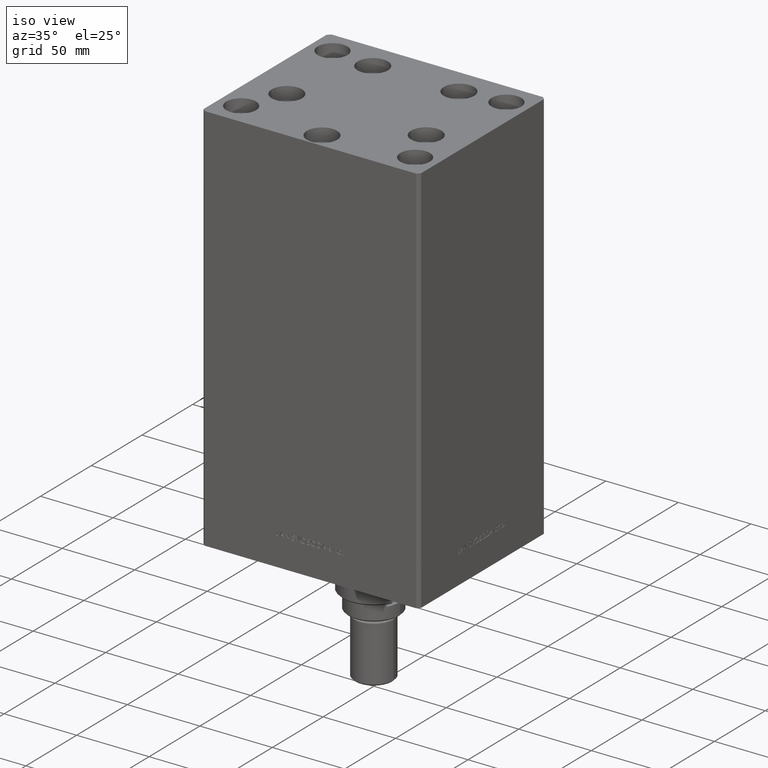
[diagram: clean part render]
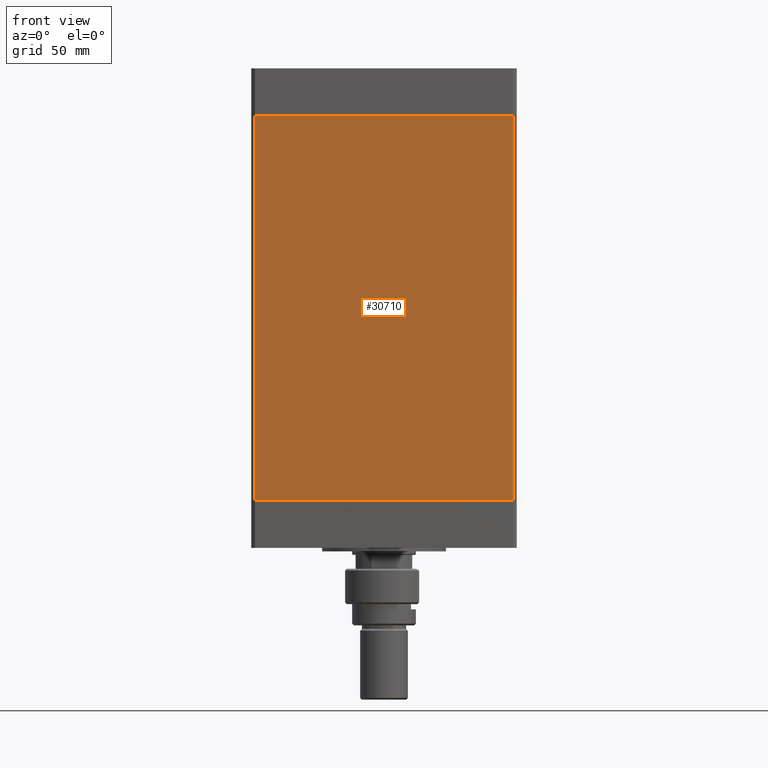
[diagram: tour spotlight — one face highlighted and labeled with its STEP entity id]
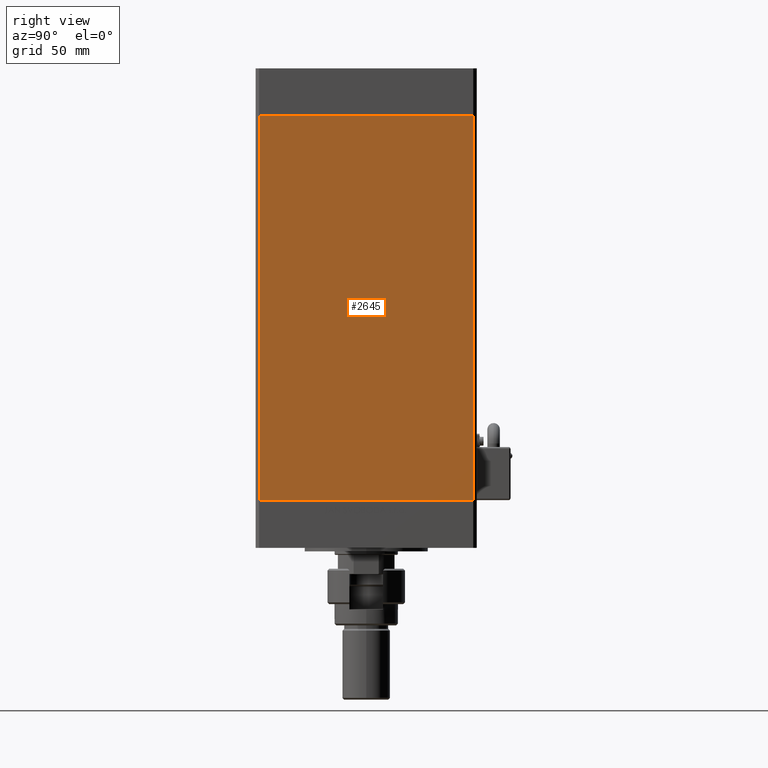
[diagram: tour spotlight — one face highlighted and labeled with its STEP entity id]
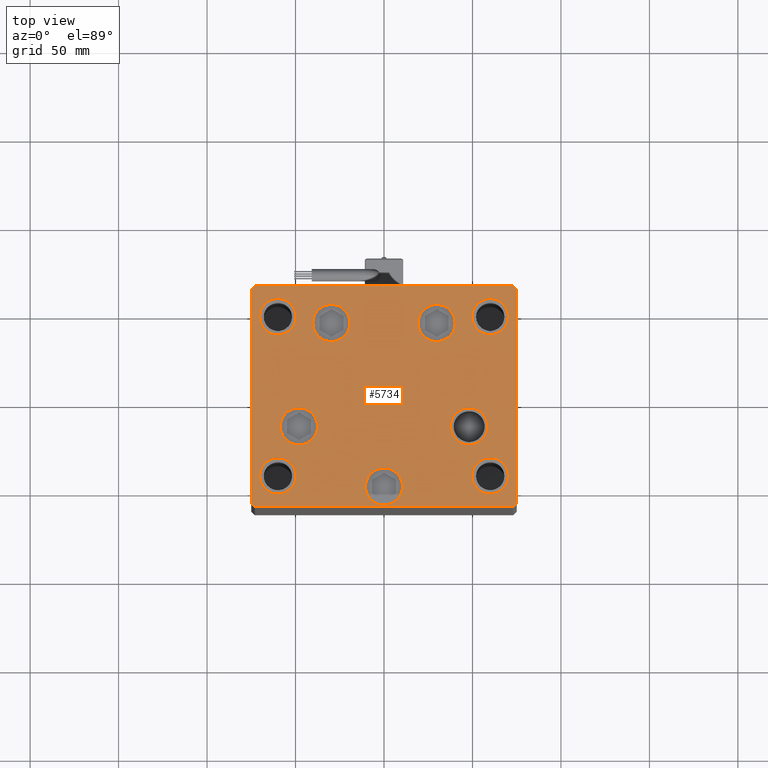
[diagram: tour spotlight — one face highlighted and labeled with its STEP entity id]
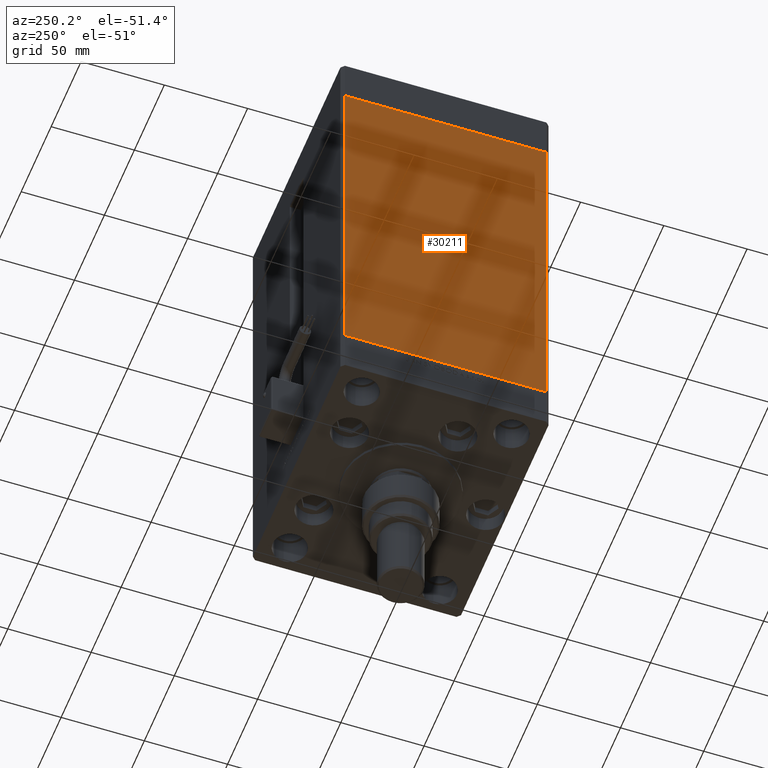
[diagram: tour spotlight — one face highlighted and labeled with its STEP entity id]
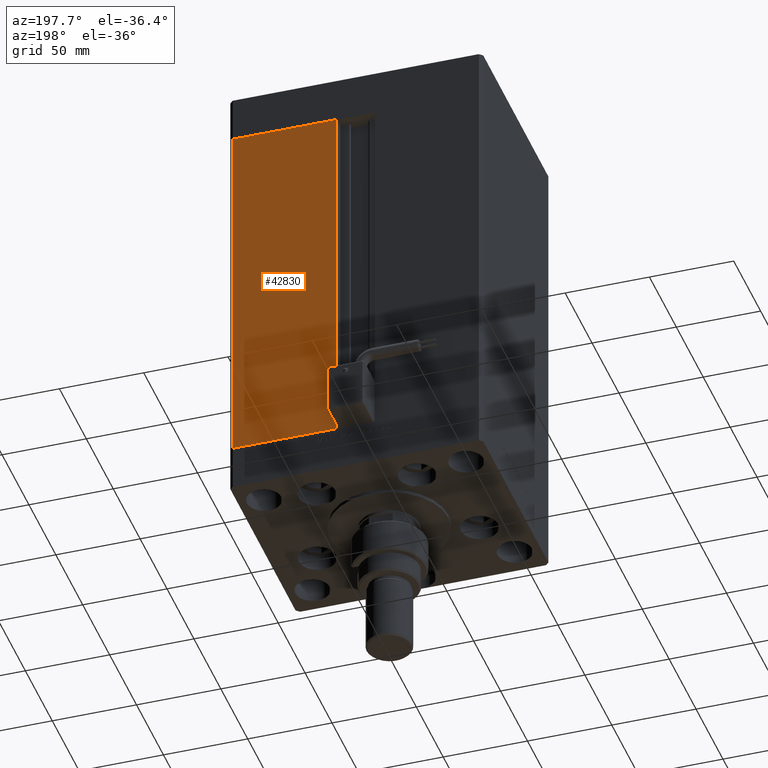
[diagram: tour spotlight — one face highlighted and labeled with its STEP entity id]
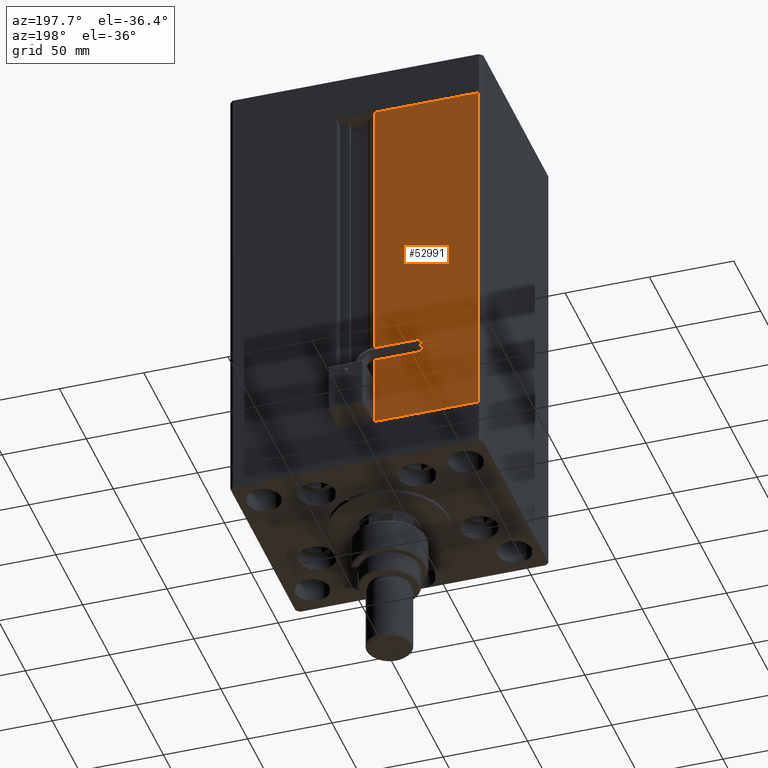
[diagram: tour spotlight — one face highlighted and labeled with its STEP entity id]
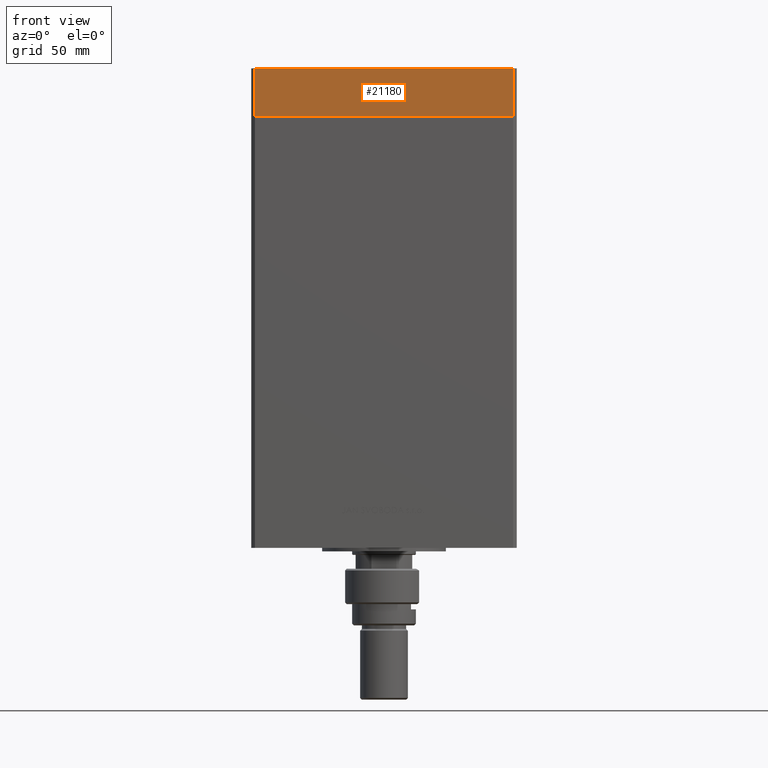
[diagram: tour spotlight — one face highlighted and labeled with its STEP entity id]
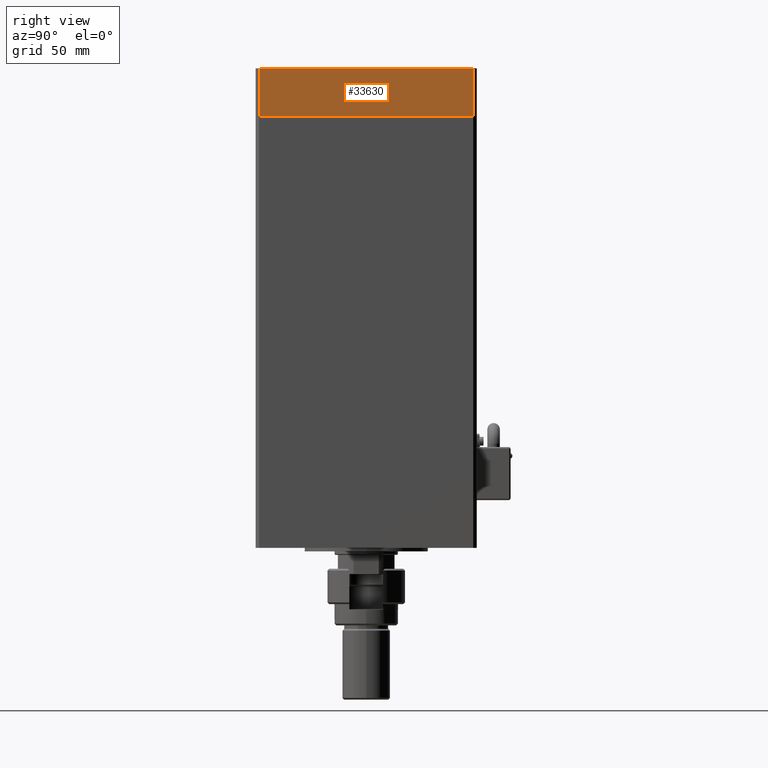
[diagram: tour spotlight — one face highlighted and labeled with its STEP entity id]
A machine part: a face-by-face anatomy tour. The part has 1298 B-rep faces; the first image is the clean iso view, then the 8 largest visible faces are spotlighted one at a time (largest first), each with its STEP entity span.

Face 1 — front view, entity #30710. In plain terms, the highlighted planar face has unit normal (0, 1, 0).
Definition (entity closure, byte-faithful):
#538 = FACE_OUTER_BOUND ( 'NONE', #22417, .T. ) ;
#3963 = DIRECTION ( 'NONE',  ( 1.000000000000000000, 0.000000000000000000, 0.000000000000000000 ) ) ;
#4226 = LINE ( 'NONE', #32407, #48001 ) ;
#4342 = ORIENTED_EDGE ( 'NONE', *, *, #48317, .F. ) ;
#4575 = DIRECTION ( 'NONE',  ( 0.000000000000000000, 1.000000000000000000, 0.000000000000000000 ) ) ;
#6236 = VECTOR ( 'NONE', #17339, 1000.000000000000000 ) ;
#6413 = CARTESIAN_POINT ( 'NONE',  ( 72.99999999999998579, -62.50000000000000000, 0.000000000000000000 ) ) ;
#7759 = VERTEX_POINT ( 'NONE', #13630 ) ;
#8612 = PLANE ( 'NONE',  #10182 ) ;
#10182 = AXIS2_PLACEMENT_3D ( 'NONE', #37846, #4575, #49670 ) ;
#12779 = EDGE_CURVE ( 'NONE', #12983, #48194, #31144, .T. ) ;
#12983 = VERTEX_POINT ( 'NONE', #25941 ) ;
#13586 = VECTOR ( 'NONE', #25164, 1000.000000000000000 ) ;
#13594 = CARTESIAN_POINT ( 'NONE',  ( -72.99999999999998579, -62.50000000000000000, 0.000000000000000000 ) ) ;
#13630 = CARTESIAN_POINT ( 'NONE',  ( -72.99999999999998579, -62.50000000000000000, 0.000000000000000000 ) ) ;
#15076 = VERTEX_POINT ( 'NONE', #47514 ) ;
#17339 = DIRECTION ( 'NONE',  ( -0.000000000000000000, -0.000000000000000000, -1.000000000000000000 ) ) ;
#22417 = EDGE_LOOP ( 'NONE', ( #25293, #48483, #4342, #51362 ) ) ;
#25129 = CARTESIAN_POINT ( 'NONE',  ( -72.99999999999998579, -62.50000000000000000, 217.0000000000000000 ) ) ;
#25164 = DIRECTION ( 'NONE',  ( 1.000000000000000000, 0.000000000000000000, 0.000000000000000000 ) ) ;
#25293 = ORIENTED_EDGE ( 'NONE', *, *, #49417, .T. ) ;
#25941 = CARTESIAN_POINT ( 'NONE',  ( 72.99999999999998579, -62.50000000000000000, 217.0000000000000000 ) ) ;
#28379 = DIRECTION ( 'NONE',  ( -0.000000000000000000, -0.000000000000000000, -1.000000000000000000 ) ) ;
#30235 = LINE ( 'NONE', #13594, #13586 ) ;
#30710 = ADVANCED_FACE ( 'NONE', ( #538 ), #8612, .F. ) ;
#31144 = LINE ( 'NONE', #36433, #43653 ) ;
#32407 = CARTESIAN_POINT ( 'NONE',  ( -72.99999999999998579, -62.50000000000000000, 217.0000000000000000 ) ) ;
#36433 = CARTESIAN_POINT ( 'NONE',  ( 72.99999999999998579, -62.50000000000000000, 217.0000000000000000 ) ) ;
#37846 = CARTESIAN_POINT ( 'NONE',  ( -72.99999999999998579, -62.50000000000000000, 217.0000000000000000 ) ) ;
#41496 = LINE ( 'NONE', #25129, #6236 ) ;
#41993 = EDGE_CURVE ( 'NONE', #15076, #7759, #41496, .T. ) ;
#43653 = VECTOR ( 'NONE', #28379, 1000.000000000000000 ) ;
#47514 = CARTESIAN_POINT ( 'NONE',  ( -72.99999999999998579, -62.50000000000000000, 217.0000000000000000 ) ) ;
#48001 = VECTOR ( 'NONE', #3963, 1000.000000000000000 ) ;
#48194 = VERTEX_POINT ( 'NONE', #6413 ) ;
#48317 = EDGE_CURVE ( 'NONE', #15076, #12983, #4226, .T. ) ;
#48483 = ORIENTED_EDGE ( 'NONE', *, *, #12779, .F. ) ;
#49417 = EDGE_CURVE ( 'NONE', #7759, #48194, #30235, .T. ) ;
#49670 = DIRECTION ( 'NONE',  ( 0.000000000000000000, -0.000000000000000000, 1.000000000000000000 ) ) ;
#51362 = ORIENTED_EDGE ( 'NONE', *, *, #41993, .T. ) ;

Face 2 — right view, entity #2645. In plain terms, the highlighted planar face has unit normal (1, -0, 0).
Definition (entity closure, byte-faithful):
#2096 = ORIENTED_EDGE ( 'NONE', *, *, #51763, .F. ) ;
#2132 = LINE ( 'NONE', #34895, #17701 ) ;
#2295 = DIRECTION ( 'NONE',  ( 1.000000000000000000, -2.293849224432142354E-16, 0.000000000000000000 ) ) ;
#2645 = ADVANCED_FACE ( 'NONE', ( #27272 ), #23245, .T. ) ;
#3436 = ORIENTED_EDGE ( 'NONE', *, *, #44601, .T. ) ;
#7393 = EDGE_CURVE ( 'NONE', #53089, #17066, #2132, .T. ) ;
#11987 = DIRECTION ( 'NONE',  ( -2.293849224432141861E-16, -1.000000000000000000, 0.000000000000000000 ) ) ;
#12311 = DIRECTION ( 'NONE',  ( -0.000000000000000000, -0.000000000000000000, -1.000000000000000000 ) ) ;
#12381 = AXIS2_PLACEMENT_3D ( 'NONE', #18949, #2295, #30747 ) ;
#13097 = CARTESIAN_POINT ( 'NONE',  ( 74.99999999999998579, -60.50000000000000000, 0.000000000000000000 ) ) ;
#15732 = CARTESIAN_POINT ( 'NONE',  ( 74.99999999999998579, -60.50000000000000000, 217.0000000000000000 ) ) ;
#15947 = VECTOR ( 'NONE', #51705, 1000.000000000000000 ) ;
#16011 = LINE ( 'NONE', #43953, #47508 ) ;
#17066 = VERTEX_POINT ( 'NONE', #13097 ) ;
#17701 = VECTOR ( 'NONE', #46974, 1000.000000000000000 ) ;
#17790 = EDGE_LOOP ( 'NONE', ( #35451, #2096, #3436, #28732 ) ) ;
#18949 = CARTESIAN_POINT ( 'NONE',  ( 75.00000000000001421, 60.50000000000000000, 217.0000000000000000 ) ) ;
#21048 = EDGE_CURVE ( 'NONE', #22038, #17066, #51968, .T. ) ;
#22038 = VERTEX_POINT ( 'NONE', #15732 ) ;
#23245 = PLANE ( 'NONE',  #12381 ) ;
#24931 = CARTESIAN_POINT ( 'NONE',  ( 75.00000000000001421, 60.50000000000000000, 217.0000000000000000 ) ) ;
#27272 = FACE_OUTER_BOUND ( 'NONE', #17790, .T. ) ;
#27553 = CARTESIAN_POINT ( 'NONE',  ( 74.99999999999998579, -60.50000000000000000, 217.0000000000000000 ) ) ;
#28732 = ORIENTED_EDGE ( 'NONE', *, *, #21048, .T. ) ;
#30747 = DIRECTION ( 'NONE',  ( 2.293849224432142354E-16, 1.000000000000000000, 0.000000000000000000 ) ) ;
#34895 = CARTESIAN_POINT ( 'NONE',  ( 75.00000000000001421, 60.50000000000000000, 0.000000000000000000 ) ) ;
#35451 = ORIENTED_EDGE ( 'NONE', *, *, #7393, .F. ) ;
#37494 = VERTEX_POINT ( 'NONE', #50181 ) ;
#39055 = CARTESIAN_POINT ( 'NONE',  ( 75.00000000000001421, 60.50000000000000000, 0.000000000000000000 ) ) ;
#43953 = CARTESIAN_POINT ( 'NONE',  ( 75.00000000000001421, 60.50000000000000000, 217.0000000000000000 ) ) ;
#44601 = EDGE_CURVE ( 'NONE', #37494, #22038, #16011, .T. ) ;
#46974 = DIRECTION ( 'NONE',  ( -2.293849224432141861E-16, -1.000000000000000000, 0.000000000000000000 ) ) ;
#47508 = VECTOR ( 'NONE', #11987, 1000.000000000000000 ) ;
#49093 = LINE ( 'NONE', #24931, #50586 ) ;
#50181 = CARTESIAN_POINT ( 'NONE',  ( 75.00000000000001421, 60.50000000000000000, 217.0000000000000000 ) ) ;
#50586 = VECTOR ( 'NONE', #12311, 1000.000000000000000 ) ;
#51705 = DIRECTION ( 'NONE',  ( -0.000000000000000000, -0.000000000000000000, -1.000000000000000000 ) ) ;
#51763 = EDGE_CURVE ( 'NONE', #37494, #53089, #49093, .T. ) ;
#51968 = LINE ( 'NONE', #27553, #15947 ) ;
#53089 = VERTEX_POINT ( 'NONE', #39055 ) ;

Face 3 — top view, entity #5734. In plain terms, the highlighted planar face has unit normal (0, 0, 1).
Definition (entity closure, byte-faithful):
#229 = CARTESIAN_POINT ( 'NONE',  ( -73.00000000000001421, -62.50000000000002842, 0.000000000000000000 ) ) ;
#512 = CARTESIAN_POINT ( 'NONE',  ( 74.99999999999992895, 60.50000000000002842, 0.000000000000000000 ) ) ;
#771 = VECTOR ( 'NONE', #34667, 1000.000000000000114 ) ;
#804 = AXIS2_PLACEMENT_3D ( 'NONE', #19203, #32332, #47933 ) ;
#1024 = EDGE_CURVE ( 'NONE', #14037, #44026, #23633, .T. ) ;
#1049 = CARTESIAN_POINT ( 'NONE',  ( 6.245698675651500444E-15, -51.00000000000000000, 0.000000000000000000 ) ) ;
#1370 = ORIENTED_EDGE ( 'NONE', *, *, #1024, .T. ) ;
#2212 = ORIENTED_EDGE ( 'NONE', *, *, #9782, .T. ) ;
#2240 = CIRCLE ( 'NONE', #38226, 10.50000000000000178 ) ;
#2516 = EDGE_CURVE ( 'NONE', #9075, #13127, #11559, .T. ) ;
#2635 = VECTOR ( 'NONE', #14340, 1000.000000000000000 ) ;
#2707 = DIRECTION ( 'NONE',  ( 0.000000000000000000, -0.000000000000000000, -1.000000000000000000 ) ) ;
#3565 = EDGE_CURVE ( 'NONE', #13127, #9075, #32997, .T. ) ;
#3778 = AXIS2_PLACEMENT_3D ( 'NONE', #35828, #28559, #11138 ) ;
#3829 = CARTESIAN_POINT ( 'NONE',  ( 37.58326112068522207, -16.99999999999999645, 0.000000000000000000 ) ) ;
#3972 = DIRECTION ( 'NONE',  ( 1.000000000000000000, 0.000000000000000000, 0.000000000000000000 ) ) ;
#3984 = CIRCLE ( 'NONE', #30556, 10.25000000000000178 ) ;
#4140 = AXIS2_PLACEMENT_3D ( 'NONE', #15055, #2707, #34923 ) ;
#4757 = ORIENTED_EDGE ( 'NONE', *, *, #44839, .F. ) ;
#5448 = ORIENTED_EDGE ( 'NONE', *, *, #3565, .T. ) ;
#5678 = AXIS2_PLACEMENT_3D ( 'NONE', #38931, #51553, #38672 ) ;
#5734 = ADVANCED_FACE ( 'NONE', ( #42967, #34380, #23095, #34909, #47528, #18793, #18270, #14500, #10747, #51279 ), #30599, .T. ) ;
#5741 = CARTESIAN_POINT ( 'NONE',  ( 49.75000000000000000, 44.99999999999999289, 0.000000000000000000 ) ) ;
#5765 = DIRECTION ( 'NONE',  ( 1.000000000000000000, 0.000000000000000000, 0.000000000000000000 ) ) ;
#6004 = CIRCLE ( 'NONE', #24863, 10.50000000000000000 ) ;
#6522 = CARTESIAN_POINT ( 'NONE',  ( -49.74999999999999289, 45.00000000000000000, 0.000000000000000000 ) ) ;
#6539 = CARTESIAN_POINT ( 'NONE',  ( 10.50000000000000711, -51.00000000000000000, 0.000000000000000000 ) ) ;
#6599 = VERTEX_POINT ( 'NONE', #35696 ) ;
#6896 = DIRECTION ( 'NONE',  ( 1.000000000000000000, 0.000000000000000000, 0.000000000000000000 ) ) ;
#7018 = CARTESIAN_POINT ( 'NONE',  ( 60.00000000000000000, 44.99999999999999289, 0.000000000000000000 ) ) ;
#7161 = DIRECTION ( 'NONE',  ( 0.000000000000000000, -0.000000000000000000, -1.000000000000000000 ) ) ;
#7405 = CARTESIAN_POINT ( 'NONE',  ( 40.23102073172059789, 41.43749999999999289, 0.000000000000000000 ) ) ;
#7495 = CARTESIAN_POINT ( 'NONE',  ( -29.73102073172060500, 41.43749999999998579, 0.000000000000000000 ) ) ;
#7636 = EDGE_CURVE ( 'NONE', #19935, #23539, #12572, .T. ) ;
#8185 = VECTOR ( 'NONE', #37026, 1000.000000000000000 ) ;
#8487 = DIRECTION ( 'NONE',  ( 0.000000000000000000, 0.000000000000000000, 1.000000000000000000 ) ) ;
#8745 = VERTEX_POINT ( 'NONE', #32793 ) ;
#8834 = VERTEX_POINT ( 'NONE', #37872 ) ;
#9075 = VERTEX_POINT ( 'NONE', #12414 ) ;
#9174 = CARTESIAN_POINT ( 'NONE',  ( 70.25000000000000000, -44.99999999999999289, 0.000000000000000000 ) ) ;
#9721 = EDGE_CURVE ( 'NONE', #22619, #45405, #26962, .T. ) ;
#9746 = VERTEX_POINT ( 'NONE', #35288 ) ;
#9765 = DIRECTION ( 'NONE',  ( 0.000000000000000000, 0.000000000000000000, 1.000000000000000000 ) ) ;
#9782 = EDGE_CURVE ( 'NONE', #8745, #40727, #26403, .T. ) ;
#9852 = AXIS2_PLACEMENT_3D ( 'NONE', #42805, #22124, #5765 ) ;
#9908 = CARTESIAN_POINT ( 'NONE',  ( 70.25000000000000000, 44.99999999999999289, 0.000000000000000000 ) ) ;
#10747 = FACE_BOUND ( 'NONE', #13977, .T. ) ;
#11138 = DIRECTION ( 'NONE',  ( 1.000000000000000000, 0.000000000000000000, 0.000000000000000000 ) ) ;
#11559 = CIRCLE ( 'NONE', #46676, 10.50000000000000178 ) ;
#11698 = ORIENTED_EDGE ( 'NONE', *, *, #7636, .T. ) ;
#12414 = CARTESIAN_POINT ( 'NONE',  ( 19.23102073172059434, 41.43749999999999289, 0.000000000000000000 ) ) ;
#12502 = CARTESIAN_POINT ( 'NONE',  ( -60.00000000000000000, 45.00000000000000000, 0.000000000000000000 ) ) ;
#12572 = LINE ( 'NONE', #16355, #40028 ) ;
#12591 = CIRCLE ( 'NONE', #32329, 10.24999999999999467 ) ;
#13101 = DIRECTION ( 'NONE',  ( 1.000000000000000000, 9.505334114941407284E-17, 0.000000000000000000 ) ) ;
#13127 = VERTEX_POINT ( 'NONE', #7405 ) ;
#13129 = EDGE_CURVE ( 'NONE', #30240, #25346, #43704, .T. ) ;
#13397 = VERTEX_POINT ( 'NONE', #6539 ) ;
#13644 = DIRECTION ( 'NONE',  ( 1.000000000000000000, 0.000000000000000000, 0.000000000000000000 ) ) ;
#13774 = DIRECTION ( 'NONE',  ( 0.000000000000000000, 0.000000000000000000, 1.000000000000000000 ) ) ;
#13977 = EDGE_LOOP ( 'NONE', ( #47127, #38216 ) ) ;
#14037 = VERTEX_POINT ( 'NONE', #48014 ) ;
#14245 = VERTEX_POINT ( 'NONE', #5741 ) ;
#14333 = CARTESIAN_POINT ( 'NONE',  ( 73.00000000000001421, -62.50000000000001421, 0.000000000000000000 ) ) ;
#14340 = DIRECTION ( 'NONE',  ( -1.000000000000000000, -1.901066822988282689E-16, 0.000000000000000000 ) ) ;
#14434 = VERTEX_POINT ( 'NONE', #3829 ) ;
#14500 = FACE_BOUND ( 'NONE', #33259, .T. ) ;
#14870 = VERTEX_POINT ( 'NONE', #32509 ) ;
#15055 = CARTESIAN_POINT ( 'NONE',  ( 48.08326112068522207, -16.99999999999999645, 0.000000000000000000 ) ) ;
#15169 = EDGE_LOOP ( 'NONE', ( #47038, #22359 ) ) ;
#15777 = CIRCLE ( 'NONE', #3778, 10.25000000000000178 ) ;
#16014 = ORIENTED_EDGE ( 'NONE', *, *, #21688, .T. ) ;
#16280 = CIRCLE ( 'NONE', #29977, 10.50000000000000178 ) ;
#16355 = CARTESIAN_POINT ( 'NONE',  ( -73.00000000000001421, -62.50000000000002842, 0.000000000000000000 ) ) ;
#16498 = VERTEX_POINT ( 'NONE', #39876 ) ;
#16636 = EDGE_CURVE ( 'NONE', #14245, #49177, #48826, .T. ) ;
#17226 = DIRECTION ( 'NONE',  ( 0.7071067811865451302, -0.7071067811865500152, 0.000000000000000000 ) ) ;
#17416 = DIRECTION ( 'NONE',  ( 0.000000000000000000, -0.000000000000000000, -1.000000000000000000 ) ) ;
#17818 = CARTESIAN_POINT ( 'NONE',  ( -60.00000000000000000, 45.00000000000000000, 0.000000000000000000 ) ) ;
#17922 = VECTOR ( 'NONE', #17226, 1000.000000000000114 ) ;
#18095 = VERTEX_POINT ( 'NONE', #6522 ) ;
#18270 = FACE_BOUND ( 'NONE', #36513, .T. ) ;
#18291 = LINE ( 'NONE', #22579, #771 ) ;
#18793 = FACE_BOUND ( 'NONE', #15169, .T. ) ;
#18969 = CARTESIAN_POINT ( 'NONE',  ( 60.00000000000000000, -44.99999999999999289, 0.000000000000000000 ) ) ;
#19203 = CARTESIAN_POINT ( 'NONE',  ( 60.00000000000000000, -44.99999999999999289, 0.000000000000000000 ) ) ;
#19657 = AXIS2_PLACEMENT_3D ( 'NONE', #7018, #13774, #23635 ) ;
#19688 = AXIS2_PLACEMENT_3D ( 'NONE', #17818, #9765, #39012 ) ;
#19843 = VECTOR ( 'NONE', #43067, 1000.000000000000000 ) ;
#19935 = VERTEX_POINT ( 'NONE', #229 ) ;
#20330 = AXIS2_PLACEMENT_3D ( 'NONE', #48138, #40338, #47854 ) ;
#20386 = ORIENTED_EDGE ( 'NONE', *, *, #21066, .T. ) ;
#20497 = AXIS2_PLACEMENT_3D ( 'NONE', #18969, #27823, #23795 ) ;
#20905 = CARTESIAN_POINT ( 'NONE',  ( -75.00000000000001421, 60.49999999999997158, 0.000000000000000000 ) ) ;
#21066 = EDGE_CURVE ( 'NONE', #9746, #14434, #24491, .T. ) ;
#21240 = ORIENTED_EDGE ( 'NONE', *, *, #39060, .T. ) ;
#21541 = CARTESIAN_POINT ( 'NONE',  ( 73.00000000000001421, -62.50000000000001421, 0.000000000000000000 ) ) ;
#21688 = EDGE_CURVE ( 'NONE', #48535, #16498, #2240, .T. ) ;
#21774 = CARTESIAN_POINT ( 'NONE',  ( -75.00000000000001421, -60.50000000000001421, 0.000000000000000000 ) ) ;
#22124 = DIRECTION ( 'NONE',  ( 0.000000000000000000, -0.000000000000000000, -1.000000000000000000 ) ) ;
#22153 = VERTEX_POINT ( 'NONE', #32884 ) ;
#22359 = ORIENTED_EDGE ( 'NONE', *, *, #13129, .F. ) ;
#22458 = DIRECTION ( 'NONE',  ( 0.000000000000000000, 0.000000000000000000, 1.000000000000000000 ) ) ;
#22579 = CARTESIAN_POINT ( 'NONE',  ( 74.99999999999992895, 60.50000000000002842, 0.000000000000000000 ) ) ;
#22619 = VERTEX_POINT ( 'NONE', #22856 ) ;
#22655 = DIRECTION ( 'NONE',  ( 1.000000000000000000, 0.000000000000000000, 0.000000000000000000 ) ) ;
#22856 = CARTESIAN_POINT ( 'NONE',  ( 75.00000000000001421, -60.50000000000000711, 0.000000000000000000 ) ) ;
#22990 = VECTOR ( 'NONE', #35547, 1000.000000000000000 ) ;
#23095 = FACE_BOUND ( 'NONE', #49738, .T. ) ;
#23167 = EDGE_LOOP ( 'NONE', ( #26609, #11698, #21240, #27722, #48392, #47480, #51447, #1370 ) ) ;
#23202 = CARTESIAN_POINT ( 'NONE',  ( -48.08326112068522207, -17.00000000000000711, 0.000000000000000000 ) ) ;
#23539 = VERTEX_POINT ( 'NONE', #21541 ) ;
#23633 = LINE ( 'NONE', #20905, #8185 ) ;
#23635 = DIRECTION ( 'NONE',  ( 1.000000000000000000, 0.000000000000000000, 0.000000000000000000 ) ) ;
#23707 = EDGE_LOOP ( 'NONE', ( #27995, #16014 ) ) ;
#23795 = DIRECTION ( 'NONE',  ( 1.000000000000000000, 0.000000000000000000, 0.000000000000000000 ) ) ;
#24491 = CIRCLE ( 'NONE', #45933, 10.50000000000000178 ) ;
#24863 = AXIS2_PLACEMENT_3D ( 'NONE', #1049, #17416, #13644 ) ;
#24869 = DIRECTION ( 'NONE',  ( 1.000000000000000000, 0.000000000000000000, 0.000000000000000000 ) ) ;
#25290 = DIRECTION ( 'NONE',  ( 1.000000000000000000, 0.000000000000000000, 0.000000000000000000 ) ) ;
#25326 = EDGE_LOOP ( 'NONE', ( #46986, #5448 ) ) ;
#25346 = VERTEX_POINT ( 'NONE', #9174 ) ;
#25375 = CARTESIAN_POINT ( 'NONE',  ( 72.99999999999992895, 62.50000000000001421, 0.000000000000000000 ) ) ;
#25513 = CIRCLE ( 'NONE', #20330, 10.50000000000000178 ) ;
#25579 = EDGE_CURVE ( 'NONE', #22153, #18095, #3984, .T. ) ;
#25691 = DIRECTION ( 'NONE',  ( -0.7071067811865451302, -0.7071067811865500152, 0.000000000000000000 ) ) ;
#26212 = EDGE_CURVE ( 'NONE', #49177, #14245, #12591, .T. ) ;
#26403 = CIRCLE ( 'NONE', #42691, 10.50000000000000178 ) ;
#26549 = ORIENTED_EDGE ( 'NONE', *, *, #25579, .F. ) ;
#26609 = ORIENTED_EDGE ( 'NONE', *, *, #31312, .T. ) ;
#26962 = LINE ( 'NONE', #30971, #22990 ) ;
#27083 = EDGE_CURVE ( 'NONE', #16498, #48535, #25513, .T. ) ;
#27421 = CIRCLE ( 'NONE', #4140, 10.50000000000000178 ) ;
#27722 = ORIENTED_EDGE ( 'NONE', *, *, #9721, .T. ) ;
#27823 = DIRECTION ( 'NONE',  ( 0.000000000000000000, 0.000000000000000000, 1.000000000000000000 ) ) ;
#27830 = EDGE_LOOP ( 'NONE', ( #52846, #36124 ) ) ;
#27995 = ORIENTED_EDGE ( 'NONE', *, *, #27083, .T. ) ;
#28559 = DIRECTION ( 'NONE',  ( 0.000000000000000000, 0.000000000000000000, 1.000000000000000000 ) ) ;
#29026 = AXIS2_PLACEMENT_3D ( 'NONE', #46620, #22458, #38835 ) ;
#29977 = AXIS2_PLACEMENT_3D ( 'NONE', #45419, #32279, #25290 ) ;
#30240 = VERTEX_POINT ( 'NONE', #34275 ) ;
#30278 = EDGE_CURVE ( 'NONE', #8834, #34543, #47039, .T. ) ;
#30301 = CARTESIAN_POINT ( 'NONE',  ( 6.245698675651500444E-15, -51.00000000000000000, 0.000000000000000000 ) ) ;
#30442 = LINE ( 'NONE', #51658, #2635 ) ;
#30536 = DIRECTION ( 'NONE',  ( 1.000000000000000000, 0.000000000000000000, 0.000000000000000000 ) ) ;
#30556 = AXIS2_PLACEMENT_3D ( 'NONE', #12502, #8487, #24869 ) ;
#30599 = PLANE ( 'NONE',  #5678 ) ;
#30971 = CARTESIAN_POINT ( 'NONE',  ( 75.00000000000001421, -60.50000000000000711, 0.000000000000000000 ) ) ;
#31250 = ORIENTED_EDGE ( 'NONE', *, *, #47805, .T. ) ;
#31312 = EDGE_CURVE ( 'NONE', #44026, #19935, #50240, .T. ) ;
#31373 = DIRECTION ( 'NONE',  ( 1.000000000000000000, 0.000000000000000000, 0.000000000000000000 ) ) ;
#31507 = DIRECTION ( 'NONE',  ( 0.000000000000000000, -0.000000000000000000, -1.000000000000000000 ) ) ;
#31891 = EDGE_CURVE ( 'NONE', #18095, #22153, #39430, .T. ) ;
#32060 = EDGE_CURVE ( 'NONE', #40727, #8745, #16280, .T. ) ;
#32279 = DIRECTION ( 'NONE',  ( 0.000000000000000000, -0.000000000000000000, -1.000000000000000000 ) ) ;
#32302 = CARTESIAN_POINT ( 'NONE',  ( -75.00000000000001421, -60.50000000000001421, 0.000000000000000000 ) ) ;
#32329 = AXIS2_PLACEMENT_3D ( 'NONE', #43427, #43701, #30536 ) ;
#32332 = DIRECTION ( 'NONE',  ( 0.000000000000000000, 0.000000000000000000, 1.000000000000000000 ) ) ;
#32509 = CARTESIAN_POINT ( 'NONE',  ( -73.00000000000001421, 62.49999999999998579, 0.000000000000000000 ) ) ;
#32793 = CARTESIAN_POINT ( 'NONE',  ( -58.58326112068522207, -17.00000000000000711, 0.000000000000000000 ) ) ;
#32884 = CARTESIAN_POINT ( 'NONE',  ( -70.25000000000000000, 45.00000000000000000, 0.000000000000000000 ) ) ;
#32997 = CIRCLE ( 'NONE', #9852, 10.50000000000000178 ) ;
#33259 = EDGE_LOOP ( 'NONE', ( #44062, #26549 ) ) ;
#33457 = CARTESIAN_POINT ( 'NONE',  ( 29.73102073172059789, 41.43749999999999289, 0.000000000000000000 ) ) ;
#33815 = CARTESIAN_POINT ( 'NONE',  ( -37.58326112068522207, -17.00000000000000711, 0.000000000000000000 ) ) ;
#34000 = ORIENTED_EDGE ( 'NONE', *, *, #30278, .F. ) ;
#34088 = EDGE_CURVE ( 'NONE', #43802, #14870, #30442, .T. ) ;
#34275 = CARTESIAN_POINT ( 'NONE',  ( 49.75000000000000000, -44.99999999999999289, 0.000000000000000000 ) ) ;
#34380 = FACE_BOUND ( 'NONE', #25326, .T. ) ;
#34543 = VERTEX_POINT ( 'NONE', #45904 ) ;
#34667 = DIRECTION ( 'NONE',  ( -0.7071067811865500152, 0.7071067811865451302, 0.000000000000000000 ) ) ;
#34909 = FACE_BOUND ( 'NONE', #27830, .T. ) ;
#34923 = DIRECTION ( 'NONE',  ( 1.000000000000000000, 0.000000000000000000, 0.000000000000000000 ) ) ;
#34936 = DIRECTION ( 'NONE',  ( 0.000000000000000000, -0.000000000000000000, -1.000000000000000000 ) ) ;
#35065 = CARTESIAN_POINT ( 'NONE',  ( -73.00000000000001421, 62.49999999999998579, 0.000000000000000000 ) ) ;
#35288 = CARTESIAN_POINT ( 'NONE',  ( 58.58326112068522207, -16.99999999999999645, 0.000000000000000000 ) ) ;
#35547 = DIRECTION ( 'NONE',  ( -6.881547673296424104E-16, 1.000000000000000000, 0.000000000000000000 ) ) ;
#35696 = CARTESIAN_POINT ( 'NONE',  ( -10.49999999999999289, -51.00000000000000000, 0.000000000000000000 ) ) ;
#35828 = CARTESIAN_POINT ( 'NONE',  ( -59.99999999999999289, -45.00000000000000000, 0.000000000000000000 ) ) ;
#36124 = ORIENTED_EDGE ( 'NONE', *, *, #38385, .T. ) ;
#36513 = EDGE_LOOP ( 'NONE', ( #4757, #34000 ) ) ;
#36580 = EDGE_CURVE ( 'NONE', #6599, #13397, #6004, .T. ) ;
#37026 = DIRECTION ( 'NONE',  ( 0.000000000000000000, -1.000000000000000000, 0.000000000000000000 ) ) ;
#37757 = EDGE_CURVE ( 'NONE', #14870, #14037, #50115, .T. ) ;
#37872 = CARTESIAN_POINT ( 'NONE',  ( -70.25000000000000000, -45.00000000000000000, 0.000000000000000000 ) ) ;
#37952 = ORIENTED_EDGE ( 'NONE', *, *, #32060, .T. ) ;
#38216 = ORIENTED_EDGE ( 'NONE', *, *, #16636, .F. ) ;
#38226 = AXIS2_PLACEMENT_3D ( 'NONE', #7495, #34936, #3972 ) ;
#38280 = DIRECTION ( 'NONE',  ( 1.000000000000000000, 0.000000000000000000, 0.000000000000000000 ) ) ;
#38385 = EDGE_CURVE ( 'NONE', #13397, #6599, #48964, .T. ) ;
#38672 = DIRECTION ( 'NONE',  ( 1.000000000000000000, 0.000000000000000000, 0.000000000000000000 ) ) ;
#38835 = DIRECTION ( 'NONE',  ( 1.000000000000000000, 0.000000000000000000, 0.000000000000000000 ) ) ;
#38931 = CARTESIAN_POINT ( 'NONE',  ( 0.000000000000000000, 0.000000000000000000, 0.000000000000000000 ) ) ;
#39012 = DIRECTION ( 'NONE',  ( 1.000000000000000000, 0.000000000000000000, 0.000000000000000000 ) ) ;
#39060 = EDGE_CURVE ( 'NONE', #23539, #22619, #51117, .T. ) ;
#39430 = CIRCLE ( 'NONE', #19688, 10.25000000000000178 ) ;
#39876 = CARTESIAN_POINT ( 'NONE',  ( -40.23102073172060500, 41.43749999999998579, 0.000000000000000000 ) ) ;
#40028 = VECTOR ( 'NONE', #13101, 1000.000000000000000 ) ;
#40338 = DIRECTION ( 'NONE',  ( 0.000000000000000000, -0.000000000000000000, -1.000000000000000000 ) ) ;
#40727 = VERTEX_POINT ( 'NONE', #33815 ) ;
#42064 = VECTOR ( 'NONE', #25691, 1000.000000000000114 ) ;
#42691 = AXIS2_PLACEMENT_3D ( 'NONE', #23202, #31507, #22655 ) ;
#42775 = EDGE_LOOP ( 'NONE', ( #2212, #37952 ) ) ;
#42805 = CARTESIAN_POINT ( 'NONE',  ( 29.73102073172059789, 41.43749999999999289, 0.000000000000000000 ) ) ;
#42944 = AXIS2_PLACEMENT_3D ( 'NONE', #30301, #46684, #31373 ) ;
#42967 = FACE_BOUND ( 'NONE', #23707, .T. ) ;
#43067 = DIRECTION ( 'NONE',  ( 0.7071067811865463515, 0.7071067811865487940, 0.000000000000000000 ) ) ;
#43427 = CARTESIAN_POINT ( 'NONE',  ( 60.00000000000000000, 44.99999999999999289, 0.000000000000000000 ) ) ;
#43654 = CIRCLE ( 'NONE', #20497, 10.24999999999999467 ) ;
#43701 = DIRECTION ( 'NONE',  ( 0.000000000000000000, 0.000000000000000000, 1.000000000000000000 ) ) ;
#43704 = CIRCLE ( 'NONE', #804, 10.24999999999999467 ) ;
#43802 = VERTEX_POINT ( 'NONE', #25375 ) ;
#44026 = VERTEX_POINT ( 'NONE', #32302 ) ;
#44062 = ORIENTED_EDGE ( 'NONE', *, *, #31891, .F. ) ;
#44432 = CARTESIAN_POINT ( 'NONE',  ( 48.08326112068522207, -16.99999999999999645, 0.000000000000000000 ) ) ;
#44839 = EDGE_CURVE ( 'NONE', #34543, #8834, #15777, .T. ) ;
#45405 = VERTEX_POINT ( 'NONE', #512 ) ;
#45419 = CARTESIAN_POINT ( 'NONE',  ( -48.08326112068522207, -17.00000000000000711, 0.000000000000000000 ) ) ;
#45904 = CARTESIAN_POINT ( 'NONE',  ( -49.74999999999998579, -45.00000000000000000, 0.000000000000000000 ) ) ;
#45933 = AXIS2_PLACEMENT_3D ( 'NONE', #44432, #7161, #6896 ) ;
#45977 = EDGE_CURVE ( 'NONE', #45405, #43802, #18291, .T. ) ;
#46620 = CARTESIAN_POINT ( 'NONE',  ( -59.99999999999999289, -45.00000000000000000, 0.000000000000000000 ) ) ;
#46676 = AXIS2_PLACEMENT_3D ( 'NONE', #33457, #49844, #38280 ) ;
#46684 = DIRECTION ( 'NONE',  ( 0.000000000000000000, -0.000000000000000000, -1.000000000000000000 ) ) ;
#46986 = ORIENTED_EDGE ( 'NONE', *, *, #2516, .T. ) ;
#47038 = ORIENTED_EDGE ( 'NONE', *, *, #47399, .F. ) ;
#47039 = CIRCLE ( 'NONE', #29026, 10.25000000000000178 ) ;
#47127 = ORIENTED_EDGE ( 'NONE', *, *, #26212, .F. ) ;
#47399 = EDGE_CURVE ( 'NONE', #25346, #30240, #43654, .T. ) ;
#47480 = ORIENTED_EDGE ( 'NONE', *, *, #34088, .T. ) ;
#47528 = FACE_BOUND ( 'NONE', #42775, .T. ) ;
#47805 = EDGE_CURVE ( 'NONE', #14434, #9746, #27421, .T. ) ;
#47854 = DIRECTION ( 'NONE',  ( 1.000000000000000000, 0.000000000000000000, 0.000000000000000000 ) ) ;
#47933 = DIRECTION ( 'NONE',  ( 1.000000000000000000, 0.000000000000000000, 0.000000000000000000 ) ) ;
#48014 = CARTESIAN_POINT ( 'NONE',  ( -75.00000000000001421, 60.49999999999997158, 0.000000000000000000 ) ) ;
#48138 = CARTESIAN_POINT ( 'NONE',  ( -29.73102073172060500, 41.43749999999998579, 0.000000000000000000 ) ) ;
#48392 = ORIENTED_EDGE ( 'NONE', *, *, #45977, .T. ) ;
#48535 = VERTEX_POINT ( 'NONE', #50372 ) ;
#48826 = CIRCLE ( 'NONE', #19657, 10.24999999999999467 ) ;
#48964 = CIRCLE ( 'NONE', #42944, 10.50000000000000000 ) ;
#49177 = VERTEX_POINT ( 'NONE', #9908 ) ;
#49738 = EDGE_LOOP ( 'NONE', ( #31250, #20386 ) ) ;
#49844 = DIRECTION ( 'NONE',  ( 0.000000000000000000, -0.000000000000000000, -1.000000000000000000 ) ) ;
#50115 = LINE ( 'NONE', #35065, #42064 ) ;
#50240 = LINE ( 'NONE', #21774, #17922 ) ;
#50372 = CARTESIAN_POINT ( 'NONE',  ( -19.23102073172060145, 41.43749999999998579, 0.000000000000000000 ) ) ;
#51117 = LINE ( 'NONE', #14333, #19843 ) ;
#51279 = FACE_OUTER_BOUND ( 'NONE', #23167, .T. ) ;
#51447 = ORIENTED_EDGE ( 'NONE', *, *, #37757, .T. ) ;
#51553 = DIRECTION ( 'NONE',  ( -0.000000000000000000, 0.000000000000000000, 1.000000000000000000 ) ) ;
#51658 = CARTESIAN_POINT ( 'NONE',  ( 72.99999999999992895, 62.50000000000001421, 0.000000000000000000 ) ) ;
#52846 = ORIENTED_EDGE ( 'NONE', *, *, #36580, .T. ) ;

Face 4 — auxiliary view, entity #30211. In plain terms, the highlighted planar face has unit normal (1, 0, 0).
Definition (entity closure, byte-faithful):
#1673 = VECTOR ( 'NONE', #9611, 1000.000000000000000 ) ;
#3675 = CARTESIAN_POINT ( 'NONE',  ( -74.99999999999998579, -60.50000000000000000, 217.0000000000000000 ) ) ;
#6932 = VERTEX_POINT ( 'NONE', #43407 ) ;
#7578 = CARTESIAN_POINT ( 'NONE',  ( -75.00000000000001421, 60.50000000000000000, 217.0000000000000000 ) ) ;
#9611 = DIRECTION ( 'NONE',  ( -0.000000000000000000, -0.000000000000000000, -1.000000000000000000 ) ) ;
#10822 = VERTEX_POINT ( 'NONE', #41488 ) ;
#11417 = VERTEX_POINT ( 'NONE', #3675 ) ;
#13152 = VECTOR ( 'NONE', #47836, 1000.000000000000000 ) ;
#14998 = CARTESIAN_POINT ( 'NONE',  ( -75.00000000000001421, 60.50000000000000000, 0.000000000000000000 ) ) ;
#16319 = VECTOR ( 'NONE', #31368, 1000.000000000000000 ) ;
#17032 = CARTESIAN_POINT ( 'NONE',  ( -75.00000000000001421, 60.50000000000000000, 217.0000000000000000 ) ) ;
#17241 = EDGE_CURVE ( 'NONE', #11417, #10822, #38597, .T. ) ;
#19026 = LINE ( 'NONE', #14998, #16319 ) ;
#21053 = LINE ( 'NONE', #17032, #26167 ) ;
#22714 = PLANE ( 'NONE',  #33318 ) ;
#23020 = EDGE_CURVE ( 'NONE', #38398, #11417, #21053, .T. ) ;
#25698 = FACE_OUTER_BOUND ( 'NONE', #50702, .T. ) ;
#26167 = VECTOR ( 'NONE', #48732, 1000.000000000000000 ) ;
#29967 = DIRECTION ( 'NONE',  ( -2.293849224432142354E-16, 1.000000000000000000, 0.000000000000000000 ) ) ;
#30211 = ADVANCED_FACE ( 'NONE', ( #25698 ), #22714, .F. ) ;
#31368 = DIRECTION ( 'NONE',  ( 2.293849224432141861E-16, -1.000000000000000000, 0.000000000000000000 ) ) ;
#31452 = LINE ( 'NONE', #7578, #13152 ) ;
#32162 = CARTESIAN_POINT ( 'NONE',  ( -75.00000000000001421, 60.50000000000000000, 217.0000000000000000 ) ) ;
#32795 = EDGE_CURVE ( 'NONE', #6932, #10822, #19026, .T. ) ;
#33318 = AXIS2_PLACEMENT_3D ( 'NONE', #39092, #42075, #29967 ) ;
#34016 = ORIENTED_EDGE ( 'NONE', *, *, #32795, .T. ) ;
#38398 = VERTEX_POINT ( 'NONE', #32162 ) ;
#38597 = LINE ( 'NONE', #46912, #1673 ) ;
#39092 = CARTESIAN_POINT ( 'NONE',  ( -75.00000000000001421, 60.50000000000000000, 217.0000000000000000 ) ) ;
#40924 = ORIENTED_EDGE ( 'NONE', *, *, #44360, .T. ) ;
#41488 = CARTESIAN_POINT ( 'NONE',  ( -74.99999999999998579, -60.50000000000000000, 0.000000000000000000 ) ) ;
#42075 = DIRECTION ( 'NONE',  ( 1.000000000000000000, 2.293849224432142354E-16, -0.000000000000000000 ) ) ;
#43407 = CARTESIAN_POINT ( 'NONE',  ( -75.00000000000001421, 60.50000000000000000, 0.000000000000000000 ) ) ;
#43431 = ORIENTED_EDGE ( 'NONE', *, *, #17241, .F. ) ;
#44360 = EDGE_CURVE ( 'NONE', #38398, #6932, #31452, .T. ) ;
#46912 = CARTESIAN_POINT ( 'NONE',  ( -74.99999999999998579, -60.50000000000000000, 217.0000000000000000 ) ) ;
#47836 = DIRECTION ( 'NONE',  ( -0.000000000000000000, -0.000000000000000000, -1.000000000000000000 ) ) ;
#48732 = DIRECTION ( 'NONE',  ( 2.293849224432141861E-16, -1.000000000000000000, 0.000000000000000000 ) ) ;
#50702 = EDGE_LOOP ( 'NONE', ( #34016, #43431, #51556, #40924 ) ) ;
#51556 = ORIENTED_EDGE ( 'NONE', *, *, #23020, .F. ) ;

Face 5 — auxiliary view, entity #42830. In plain terms, the highlighted planar face has unit normal (-0, -1, 0).
Definition (entity closure, byte-faithful):
#283 = AXIS2_PLACEMENT_3D ( 'NONE', #49265, #4439, #17037 ) ;
#1913 = DIRECTION ( 'NONE',  ( 1.000000000000000000, 0.000000000000000000, 0.000000000000000000 ) ) ;
#3222 = VECTOR ( 'NONE', #19136, 1000.000000000000000 ) ;
#4439 = DIRECTION ( 'NONE',  ( -1.123707514802790025E-16, -1.000000000000000000, 0.000000000000000000 ) ) ;
#5590 = ORIENTED_EDGE ( 'NONE', *, *, #17895, .T. ) ;
#7085 = ORIENTED_EDGE ( 'NONE', *, *, #27939, .T. ) ;
#7387 = VERTEX_POINT ( 'NONE', #17715 ) ;
#9758 = LINE ( 'NONE', #39549, #3222 ) ;
#10257 = CARTESIAN_POINT ( 'NONE',  ( 73.00000000000001421, 62.50000000000000000, 217.0000000000000000 ) ) ;
#14005 = CARTESIAN_POINT ( 'NONE',  ( 11.25000000000000178, 62.49999999999999289, 0.000000000000000000 ) ) ;
#14045 = VERTEX_POINT ( 'NONE', #43179 ) ;
#17037 = DIRECTION ( 'NONE',  ( 1.000000000000000000, -1.123707514802790025E-16, 0.000000000000000000 ) ) ;
#17715 = CARTESIAN_POINT ( 'NONE',  ( 11.24999999999999467, 62.49999999999999289, 217.0000000000000000 ) ) ;
#17754 = LINE ( 'NONE', #26348, #50581 ) ;
#17895 = EDGE_CURVE ( 'NONE', #39475, #14045, #48445, .T. ) ;
#19136 = DIRECTION ( 'NONE',  ( -1.000000000000000000, 1.123707514802790025E-16, 0.000000000000000000 ) ) ;
#21984 = VECTOR ( 'NONE', #41236, 1000.000000000000000 ) ;
#24018 = DIRECTION ( 'NONE',  ( -0.000000000000000000, -0.000000000000000000, -1.000000000000000000 ) ) ;
#25139 = EDGE_CURVE ( 'NONE', #40534, #7387, #50081, .T. ) ;
#26348 = CARTESIAN_POINT ( 'NONE',  ( -11.25000000000000178, 62.49999999999999289, 217.0000000000000000 ) ) ;
#27939 = EDGE_CURVE ( 'NONE', #14045, #40534, #9758, .T. ) ;
#28600 = PLANE ( 'NONE',  #283 ) ;
#29138 = CARTESIAN_POINT ( 'NONE',  ( 11.25000000000000178, 62.49999999999999289, 0.000000000000000000 ) ) ;
#31435 = ORIENTED_EDGE ( 'NONE', *, *, #25139, .T. ) ;
#32174 = EDGE_LOOP ( 'NONE', ( #7085, #31435, #45495, #5590 ) ) ;
#32277 = EDGE_CURVE ( 'NONE', #7387, #39475, #17754, .T. ) ;
#39475 = VERTEX_POINT ( 'NONE', #10257 ) ;
#39549 = CARTESIAN_POINT ( 'NONE',  ( -11.25000000000000178, 62.49999999999999289, 0.000000000000000000 ) ) ;
#40534 = VERTEX_POINT ( 'NONE', #14005 ) ;
#41220 = FACE_OUTER_BOUND ( 'NONE', #32174, .T. ) ;
#41236 = DIRECTION ( 'NONE',  ( -0.000000000000000000, -0.000000000000000000, 1.000000000000000000 ) ) ;
#42830 = ADVANCED_FACE ( 'NONE', ( #41220 ), #28600, .F. ) ;
#43179 = CARTESIAN_POINT ( 'NONE',  ( 73.00000000000001421, 62.50000000000000000, 0.000000000000000000 ) ) ;
#44404 = CARTESIAN_POINT ( 'NONE',  ( 73.00000000000001421, 62.50000000000000000, 217.0000000000000000 ) ) ;
#45495 = ORIENTED_EDGE ( 'NONE', *, *, #32277, .T. ) ;
#48445 = LINE ( 'NONE', #44404, #51428 ) ;
#49265 = CARTESIAN_POINT ( 'NONE',  ( -11.25000000000000178, 62.49999999999999289, 217.0000000000000000 ) ) ;
#50081 = LINE ( 'NONE', #29138, #21984 ) ;
#50581 = VECTOR ( 'NONE', #1913, 1000.000000000000000 ) ;
#51428 = VECTOR ( 'NONE', #24018, 1000.000000000000000 ) ;

Face 6 — auxiliary view, entity #52991. In plain terms, the highlighted planar face has unit normal (-0, -1, 0).
Definition (entity closure, byte-faithful):
#1561 = VECTOR ( 'NONE', #30899, 1000.000000000000000 ) ;
#2275 = PLANE ( 'NONE',  #48074 ) ;
#3813 = ORIENTED_EDGE ( 'NONE', *, *, #51006, .F. ) ;
#6807 = EDGE_LOOP ( 'NONE', ( #19124, #40483, #33185, #3813 ) ) ;
#7137 = DIRECTION ( 'NONE',  ( 1.000000000000000000, -1.123707514802790025E-16, 0.000000000000000000 ) ) ;
#11083 = VECTOR ( 'NONE', #39913, 1000.000000000000000 ) ;
#15168 = CARTESIAN_POINT ( 'NONE',  ( -11.25000000000000178, 62.49999999999999289, 217.0000000000000000 ) ) ;
#16548 = DIRECTION ( 'NONE',  ( 1.000000000000000000, 0.000000000000000000, 0.000000000000000000 ) ) ;
#19124 = ORIENTED_EDGE ( 'NONE', *, *, #35990, .T. ) ;
#23841 = VERTEX_POINT ( 'NONE', #30571 ) ;
#24877 = CARTESIAN_POINT ( 'NONE',  ( -11.25000000000000178, 62.49999999999999289, 217.0000000000000000 ) ) ;
#25676 = VECTOR ( 'NONE', #32965, 1000.000000000000000 ) ;
#26727 = DIRECTION ( 'NONE',  ( -1.123707514802790025E-16, -1.000000000000000000, 0.000000000000000000 ) ) ;
#28121 = CARTESIAN_POINT ( 'NONE',  ( -11.25000000000000178, 62.49999999999999289, 217.0000000000000000 ) ) ;
#29636 = EDGE_CURVE ( 'NONE', #40396, #41937, #51044, .T. ) ;
#30571 = CARTESIAN_POINT ( 'NONE',  ( -73.00000000000001421, 62.50000000000000000, 217.0000000000000000 ) ) ;
#30774 = CARTESIAN_POINT ( 'NONE',  ( -11.25000000000000178, 62.49999999999999289, 0.000000000000000000 ) ) ;
#30899 = DIRECTION ( 'NONE',  ( -1.000000000000000000, 1.123707514802790025E-16, 0.000000000000000000 ) ) ;
#32965 = DIRECTION ( 'NONE',  ( -0.000000000000000000, -0.000000000000000000, -1.000000000000000000 ) ) ;
#33185 = ORIENTED_EDGE ( 'NONE', *, *, #29636, .T. ) ;
#35957 = CARTESIAN_POINT ( 'NONE',  ( -73.00000000000001421, 62.50000000000000000, 217.0000000000000000 ) ) ;
#35990 = EDGE_CURVE ( 'NONE', #23841, #45560, #49830, .T. ) ;
#39913 = DIRECTION ( 'NONE',  ( -0.000000000000000000, -0.000000000000000000, 1.000000000000000000 ) ) ;
#40396 = VERTEX_POINT ( 'NONE', #43137 ) ;
#40483 = ORIENTED_EDGE ( 'NONE', *, *, #50429, .F. ) ;
#41027 = LINE ( 'NONE', #35957, #25676 ) ;
#41937 = VERTEX_POINT ( 'NONE', #49029 ) ;
#43137 = CARTESIAN_POINT ( 'NONE',  ( -11.25000000000000178, 62.49999999999999289, 0.000000000000000000 ) ) ;
#43524 = CARTESIAN_POINT ( 'NONE',  ( -11.25000000000000178, 62.49999999999999289, 0.000000000000000000 ) ) ;
#45560 = VERTEX_POINT ( 'NONE', #28121 ) ;
#48074 = AXIS2_PLACEMENT_3D ( 'NONE', #15168, #26727, #7137 ) ;
#49029 = CARTESIAN_POINT ( 'NONE',  ( -73.00000000000001421, 62.50000000000000000, 0.000000000000000000 ) ) ;
#49728 = VECTOR ( 'NONE', #16548, 1000.000000000000000 ) ;
#49830 = LINE ( 'NONE', #24877, #49728 ) ;
#50429 = EDGE_CURVE ( 'NONE', #40396, #45560, #52259, .T. ) ;
#51006 = EDGE_CURVE ( 'NONE', #23841, #41937, #41027, .T. ) ;
#51044 = LINE ( 'NONE', #43524, #1561 ) ;
#52212 = FACE_OUTER_BOUND ( 'NONE', #6807, .T. ) ;
#52259 = LINE ( 'NONE', #30774, #11083 ) ;
#52991 = ADVANCED_FACE ( 'NONE', ( #52212 ), #2275, .F. ) ;

Face 7 — front view, entity #21180. In plain terms, the highlighted planar face has unit normal (0, -1, 0).
Definition (entity closure, byte-faithful):
#229 = CARTESIAN_POINT ( 'NONE',  ( -73.00000000000001421, -62.50000000000002842, 0.000000000000000000 ) ) ;
#948 = DIRECTION ( 'NONE',  ( 0.000000000000000000, 0.000000000000000000, 1.000000000000000000 ) ) ;
#3498 = EDGE_CURVE ( 'NONE', #33809, #19935, #9525, .T. ) ;
#3837 = VECTOR ( 'NONE', #948, 1000.000000000000000 ) ;
#4161 = DIRECTION ( 'NONE',  ( 1.000000000000000000, 9.505334114941407284E-17, 0.000000000000000000 ) ) ;
#6013 = ORIENTED_EDGE ( 'NONE', *, *, #9196, .T. ) ;
#6633 = CARTESIAN_POINT ( 'NONE',  ( -73.00000000000001421, -62.50000000000002842, -27.00000000000000000 ) ) ;
#7636 = EDGE_CURVE ( 'NONE', #19935, #23539, #12572, .T. ) ;
#9196 = EDGE_CURVE ( 'NONE', #53130, #23539, #42730, .T. ) ;
#9525 = LINE ( 'NONE', #29389, #3837 ) ;
#12276 = ORIENTED_EDGE ( 'NONE', *, *, #27197, .T. ) ;
#12572 = LINE ( 'NONE', #16355, #40028 ) ;
#13101 = DIRECTION ( 'NONE',  ( 1.000000000000000000, 9.505334114941407284E-17, 0.000000000000000000 ) ) ;
#14368 = VECTOR ( 'NONE', #51313, 1000.000000000000000 ) ;
#15375 = CARTESIAN_POINT ( 'NONE',  ( -73.00000000000001421, -62.50000000000002842, -27.00000000000000000 ) ) ;
#15985 = CARTESIAN_POINT ( 'NONE',  ( -73.00000000000001421, -62.50000000000002842, -27.00000000000000000 ) ) ;
#16355 = CARTESIAN_POINT ( 'NONE',  ( -73.00000000000001421, -62.50000000000002842, 0.000000000000000000 ) ) ;
#17027 = DIRECTION ( 'NONE',  ( 9.505334114941407284E-17, -1.000000000000000000, 0.000000000000000000 ) ) ;
#19935 = VERTEX_POINT ( 'NONE', #229 ) ;
#21180 = ADVANCED_FACE ( 'NONE', ( #28590 ), #37166, .T. ) ;
#21541 = CARTESIAN_POINT ( 'NONE',  ( 73.00000000000001421, -62.50000000000001421, 0.000000000000000000 ) ) ;
#23539 = VERTEX_POINT ( 'NONE', #21541 ) ;
#26356 = CARTESIAN_POINT ( 'NONE',  ( 73.00000000000001421, -62.50000000000001421, -27.00000000000000000 ) ) ;
#27197 = EDGE_CURVE ( 'NONE', #33809, #53130, #52146, .T. ) ;
#28590 = FACE_OUTER_BOUND ( 'NONE', #41079, .T. ) ;
#29389 = CARTESIAN_POINT ( 'NONE',  ( -73.00000000000001421, -62.50000000000002842, -27.00000000000000000 ) ) ;
#31385 = AXIS2_PLACEMENT_3D ( 'NONE', #15985, #17027, #4161 ) ;
#33809 = VERTEX_POINT ( 'NONE', #6633 ) ;
#34811 = ORIENTED_EDGE ( 'NONE', *, *, #3498, .F. ) ;
#37166 = PLANE ( 'NONE',  #31385 ) ;
#40028 = VECTOR ( 'NONE', #13101, 1000.000000000000000 ) ;
#40074 = DIRECTION ( 'NONE',  ( 1.000000000000000000, 9.505334114941407284E-17, 0.000000000000000000 ) ) ;
#40084 = VECTOR ( 'NONE', #40074, 1000.000000000000000 ) ;
#41079 = EDGE_LOOP ( 'NONE', ( #44674, #34811, #12276, #6013 ) ) ;
#42730 = LINE ( 'NONE', #26356, #14368 ) ;
#44674 = ORIENTED_EDGE ( 'NONE', *, *, #7636, .F. ) ;
#51313 = DIRECTION ( 'NONE',  ( 0.000000000000000000, 0.000000000000000000, 1.000000000000000000 ) ) ;
#51680 = CARTESIAN_POINT ( 'NONE',  ( 73.00000000000001421, -62.50000000000001421, -27.00000000000000000 ) ) ;
#52146 = LINE ( 'NONE', #15375, #40084 ) ;
#53130 = VERTEX_POINT ( 'NONE', #51680 ) ;

Face 8 — right view, entity #33630. In plain terms, the highlighted planar face has unit normal (1, 0, 0).
Definition (entity closure, byte-faithful):
#110 = VERTEX_POINT ( 'NONE', #28442 ) ;
#512 = CARTESIAN_POINT ( 'NONE',  ( 74.99999999999992895, 60.50000000000002842, 0.000000000000000000 ) ) ;
#3098 = VERTEX_POINT ( 'NONE', #46450 ) ;
#3541 = DIRECTION ( 'NONE',  ( -6.881547673296424104E-16, 1.000000000000000000, 0.000000000000000000 ) ) ;
#4061 = CARTESIAN_POINT ( 'NONE',  ( 75.00000000000001421, -60.50000000000000711, -27.00000000000000000 ) ) ;
#5890 = DIRECTION ( 'NONE',  ( 0.000000000000000000, 0.000000000000000000, 1.000000000000000000 ) ) ;
#6843 = VECTOR ( 'NONE', #41592, 1000.000000000000000 ) ;
#8207 = ORIENTED_EDGE ( 'NONE', *, *, #48076, .T. ) ;
#8537 = CARTESIAN_POINT ( 'NONE',  ( 75.00000000000001421, -60.50000000000000711, -27.00000000000000000 ) ) ;
#9641 = CARTESIAN_POINT ( 'NONE',  ( 74.99999999999992895, 60.50000000000002842, -27.00000000000000000 ) ) ;
#9721 = EDGE_CURVE ( 'NONE', #22619, #45405, #26962, .T. ) ;
#10154 = VECTOR ( 'NONE', #3541, 1000.000000000000000 ) ;
#12125 = LINE ( 'NONE', #4061, #10154 ) ;
#13655 = LINE ( 'NONE', #9641, #6843 ) ;
#13667 = LINE ( 'NONE', #38637, #42752 ) ;
#14895 = EDGE_CURVE ( 'NONE', #110, #3098, #12125, .T. ) ;
#22619 = VERTEX_POINT ( 'NONE', #22856 ) ;
#22856 = CARTESIAN_POINT ( 'NONE',  ( 75.00000000000001421, -60.50000000000000711, 0.000000000000000000 ) ) ;
#22962 = ORIENTED_EDGE ( 'NONE', *, *, #14895, .T. ) ;
#22990 = VECTOR ( 'NONE', #35547, 1000.000000000000000 ) ;
#23578 = ORIENTED_EDGE ( 'NONE', *, *, #29956, .F. ) ;
#26962 = LINE ( 'NONE', #30971, #22990 ) ;
#28442 = CARTESIAN_POINT ( 'NONE',  ( 75.00000000000001421, -60.50000000000000711, -27.00000000000000000 ) ) ;
#28663 = PLANE ( 'NONE',  #33432 ) ;
#29956 = EDGE_CURVE ( 'NONE', #110, #22619, #13667, .T. ) ;
#30971 = CARTESIAN_POINT ( 'NONE',  ( 75.00000000000001421, -60.50000000000000711, 0.000000000000000000 ) ) ;
#33106 = ORIENTED_EDGE ( 'NONE', *, *, #9721, .F. ) ;
#33432 = AXIS2_PLACEMENT_3D ( 'NONE', #8537, #45036, #41019 ) ;
#33630 = ADVANCED_FACE ( 'NONE', ( #49076 ), #28663, .T. ) ;
#35547 = DIRECTION ( 'NONE',  ( -6.881547673296424104E-16, 1.000000000000000000, 0.000000000000000000 ) ) ;
#38637 = CARTESIAN_POINT ( 'NONE',  ( 75.00000000000001421, -60.50000000000000711, -27.00000000000000000 ) ) ;
#41019 = DIRECTION ( 'NONE',  ( -6.881547673296424104E-16, 1.000000000000000000, 0.000000000000000000 ) ) ;
#41592 = DIRECTION ( 'NONE',  ( 0.000000000000000000, 0.000000000000000000, 1.000000000000000000 ) ) ;
#42752 = VECTOR ( 'NONE', #5890, 1000.000000000000000 ) ;
#45036 = DIRECTION ( 'NONE',  ( 1.000000000000000000, 6.881547673296424104E-16, -0.000000000000000000 ) ) ;
#45405 = VERTEX_POINT ( 'NONE', #512 ) ;
#46450 = CARTESIAN_POINT ( 'NONE',  ( 74.99999999999992895, 60.50000000000002842, -27.00000000000000000 ) ) ;
#47844 = EDGE_LOOP ( 'NONE', ( #33106, #23578, #22962, #8207 ) ) ;
#48076 = EDGE_CURVE ( 'NONE', #3098, #45405, #13655, .T. ) ;
#49076 = FACE_OUTER_BOUND ( 'NONE', #47844, .T. ) ;